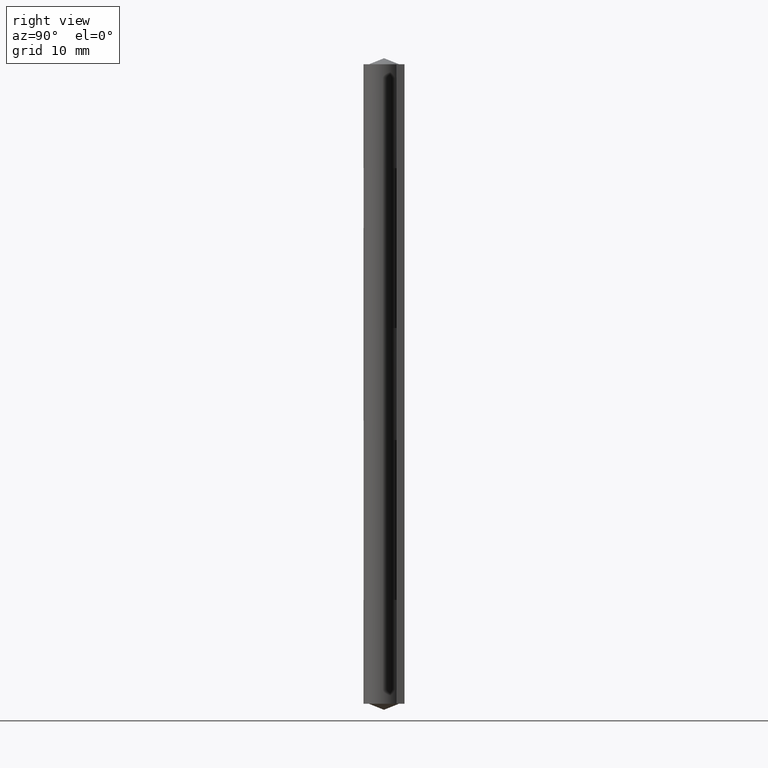
[diagram: clean part render]
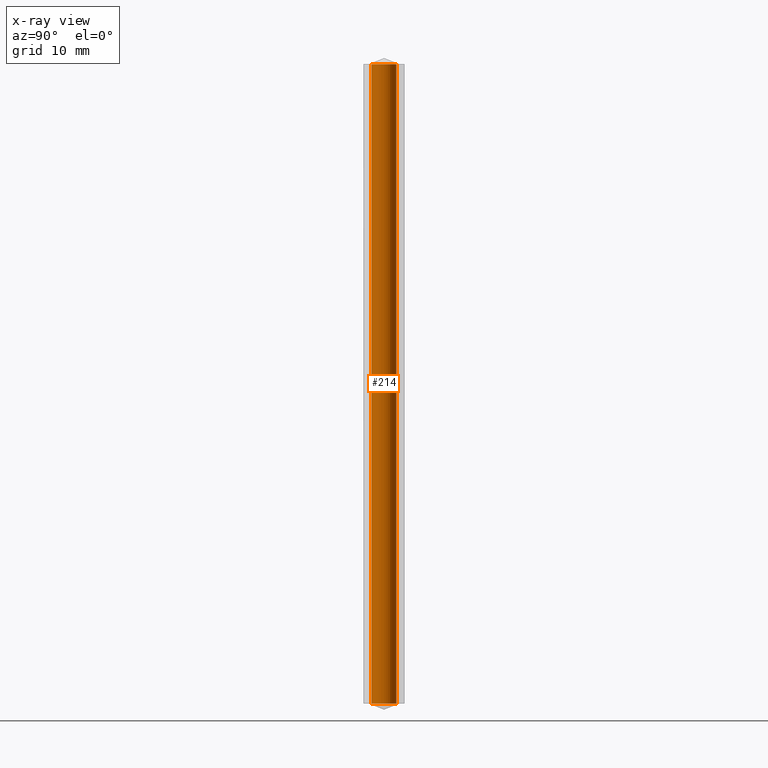
[diagram: x-ray — body ghosted, one internal face saturated and labeled with its STEP entity id]
A machine part, right view, then the same camera in x-ray: the body is ghosted and one INTERNAL B-rep face — a face not visible from any outside direction — is saturated and labeled: STEP entity #214.
In plain terms, the highlighted face is a freeform B-spline surface patch.
Its self-contained STEP definition (entity closure, byte-faithful):
#81=CARTESIAN_POINT('',(1.249997000000000,0.0,0.0));
#82=VERTEX_POINT('',#81);
#83=CARTESIAN_POINT('',(0.076310491494205,-1.247665503609406,-1.524162E-015));
#84=VERTEX_POINT('',#83);
#85=CARTESIAN_POINT('',(1.249997000000000,0.0,0.0));
#86=CARTESIAN_POINT('',(1.249997000000000,-1.175879761305006,-4.756357E-015));
#87=CARTESIAN_POINT('',(0.076310491494205,-1.247665503609406,-5.046725E-015));
#95=(BOUNDED_CURVE()B_SPLINE_CURVE(2,(#85,#86,#87),.UNSPECIFIED.,.F.,.U.)B_SPLINE_CURVE_WITH_KNOTS((3,3),(0.500000000000000,0.739332962211370),.UNSPECIFIED.)CURVE()GEOMETRIC_REPRESENTATION_ITEM()RATIONAL_B_SPLINE_CURVE((1.0,0.719603993319014,0.976072041607624))REPRESENTATION_ITEM(''));
#96=EDGE_CURVE('',#82,#84,#95,.T.);
#115=CARTESIAN_POINT('',(-0.076310491494205,1.247665503609406,-8.967372E-015));
#116=VERTEX_POINT('',#115);
#130=CARTESIAN_POINT('',(-0.076310491494205,1.247665503609406,-8.967372E-015));
#131=CARTESIAN_POINT('',(-0.038190862575883,1.249997000000001,-5.056156E-015));
#132=CARTESIAN_POINT('',(0.0,1.249997000000000,-5.056156E-015));
#133=CARTESIAN_POINT('',(1.249997000000000,1.249997000000000,-5.056156E-015));
#134=CARTESIAN_POINT('',(1.249997000000000,0.0,-5.056156E-015));
#142=(BOUNDED_CURVE()B_SPLINE_CURVE(2,(#130,#131,#132,#133,#134),.UNSPECIFIED.,.F.,.U.)B_SPLINE_CURVE_WITH_KNOTS((3,2,3),(0.239332962211370,0.250000000000000,0.500000000000000),.UNSPECIFIED.)CURVE()GEOMETRIC_REPRESENTATION_ITEM()RATIONAL_B_SPLINE_CURVE((0.976072041607624,0.987502787867534,1.0,0.707106781186548,1.0))REPRESENTATION_ITEM(''));
#143=EDGE_CURVE('',#116,#82,#142,.T.);
#148=CARTESIAN_POINT('',(-0.076310491272953,1.247665503622938,65.600008199999991));
#149=CARTESIAN_POINT('',(1.171355012349985,1.323975994895891,65.600008199999991));
#150=CARTESIAN_POINT('',(1.247665503622938,0.076310491272953,65.600008199999991));
#151=CARTESIAN_POINT('',(1.323975994895891,-1.171355012349985,65.600008199999991));
#152=CARTESIAN_POINT('',(0.076310491272953,-1.247665503622938,65.600008199999991));
#153=CARTESIAN_POINT('',(-0.076310491272953,1.247665503622938,-1.640000205000007));
#154=CARTESIAN_POINT('',(1.171355012349985,1.323975994895891,-1.640000205000007));
#155=CARTESIAN_POINT('',(1.247665503622938,0.076310491272953,-1.640000205000007));
#156=CARTESIAN_POINT('',(1.323975994895891,-1.171355012349985,-1.640000205000007));
#157=CARTESIAN_POINT('',(0.076310491272953,-1.247665503622938,-1.640000205000007));
#165=(BOUNDED_SURFACE()B_SPLINE_SURFACE(2,1,((#148,#153),(#149,#154),(#150,#155),(#151,#156),(#152,#157)),.UNSPECIFIED.,.F.,.F.,.U.)B_SPLINE_SURFACE_WITH_KNOTS((3,2,3),(2,2),(3.141592653589793,4.712388980384690,6.283185307179586),(0.0,67.240008404999998),.UNSPECIFIED.)GEOMETRIC_REPRESENTATION_ITEM()RATIONAL_B_SPLINE_SURFACE(((1.0,1.0),(0.707106781186548,0.707106781186548),(1.0,1.0),(0.707106781186548,0.707106781186548),(1.0,1.0)))REPRESENTATION_ITEM('')SURFACE());
#166=ORIENTED_EDGE('',*,*,#143,.F.);
#167=CARTESIAN_POINT('',(-0.076310491494205,1.247665503609406,64.000007999999994));
#168=VERTEX_POINT('',#167);
#169=CARTESIAN_POINT('',(-0.076310491494205,1.247665503609406,64.000007999999994));
#170=CARTESIAN_POINT('',(-0.076310491494205,1.247665503609406,-8.967372E-015));
#171=QUASI_UNIFORM_CURVE('',1,(#169,#170),.UNSPECIFIED.,.F.,.U.);
#172=EDGE_CURVE('',#168,#116,#171,.T.);
#173=ORIENTED_EDGE('',*,*,#172,.F.);
#174=CARTESIAN_POINT('',(1.249997000000000,0.0,64.000007999999994));
#175=VERTEX_POINT('',#174);
#176=CARTESIAN_POINT('',(-0.076310491494205,1.247665503609406,64.000008000000008));
#177=CARTESIAN_POINT('',(-0.038190862575883,1.249997000000001,64.000007999999994));
#178=CARTESIAN_POINT('',(0.0,1.249997000000000,64.000007999999994));
#179=CARTESIAN_POINT('',(1.249997000000000,1.249997000000000,64.000007999999994));
#180=CARTESIAN_POINT('',(1.249997000000000,0.0,64.000007999999994));
#188=(BOUNDED_CURVE()B_SPLINE_CURVE(2,(#176,#177,#178,#179,#180),.UNSPECIFIED.,.F.,.U.)B_SPLINE_CURVE_WITH_KNOTS((3,2,3),(0.239332962211370,0.250000000000000,0.500000000000000),.UNSPECIFIED.)CURVE()GEOMETRIC_REPRESENTATION_ITEM()RATIONAL_B_SPLINE_CURVE((0.976072041607624,0.987502787867534,1.0,0.707106781186548,1.0))REPRESENTATION_ITEM(''));
#189=EDGE_CURVE('',#168,#175,#188,.T.);
#190=ORIENTED_EDGE('',*,*,#189,.T.);
#191=CARTESIAN_POINT('',(0.076310491494205,-1.247665503609406,64.000007999999994));
#192=VERTEX_POINT('',#191);
#193=CARTESIAN_POINT('',(1.249997000000000,0.0,64.000007999999994));
#194=CARTESIAN_POINT('',(1.249997000000000,-1.175879761305006,64.000007999999994));
#195=CARTESIAN_POINT('',(0.076310491494205,-1.247665503609406,64.000007999999994));
#203=(BOUNDED_CURVE()B_SPLINE_CURVE(2,(#193,#194,#195),.UNSPECIFIED.,.F.,.U.)B_SPLINE_CURVE_WITH_KNOTS((3,3),(0.500000000000000,0.739332962211370),.UNSPECIFIED.)CURVE()GEOMETRIC_REPRESENTATION_ITEM()RATIONAL_B_SPLINE_CURVE((1.0,0.719603993319014,0.976072041607624))REPRESENTATION_ITEM(''));
#204=EDGE_CURVE('',#175,#192,#203,.T.);
#205=ORIENTED_EDGE('',*,*,#204,.T.);
#206=CARTESIAN_POINT('',(0.076310491494205,-1.247665503609406,64.000007999999994));
#207=CARTESIAN_POINT('',(0.076310491494205,-1.247665503609406,-1.524162E-015));
#208=QUASI_UNIFORM_CURVE('',1,(#206,#207),.UNSPECIFIED.,.F.,.U.);
#209=EDGE_CURVE('',#192,#84,#208,.T.);
#210=ORIENTED_EDGE('',*,*,#209,.T.);
#211=ORIENTED_EDGE('',*,*,#96,.F.);
#212=EDGE_LOOP('',(#166,#173,#190,#205,#210,#211));
#213=FACE_OUTER_BOUND('',#212,.T.);
#214=ADVANCED_FACE('',(#213),#165,.T.);